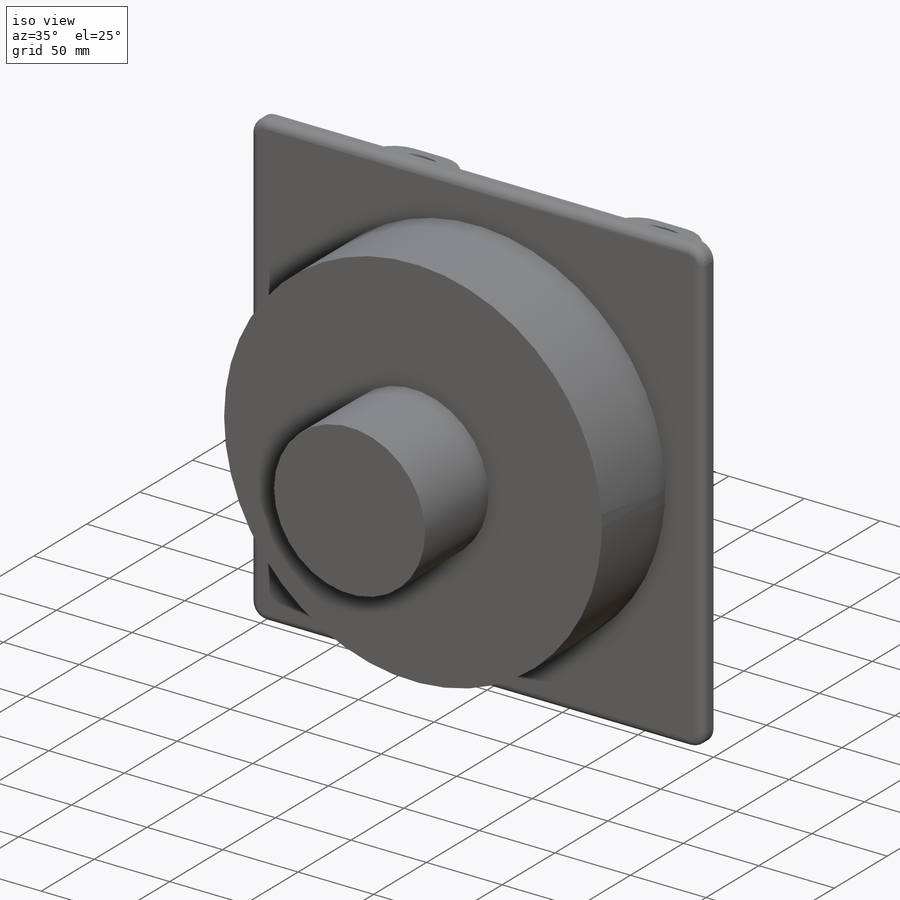
[diagram: iso view]
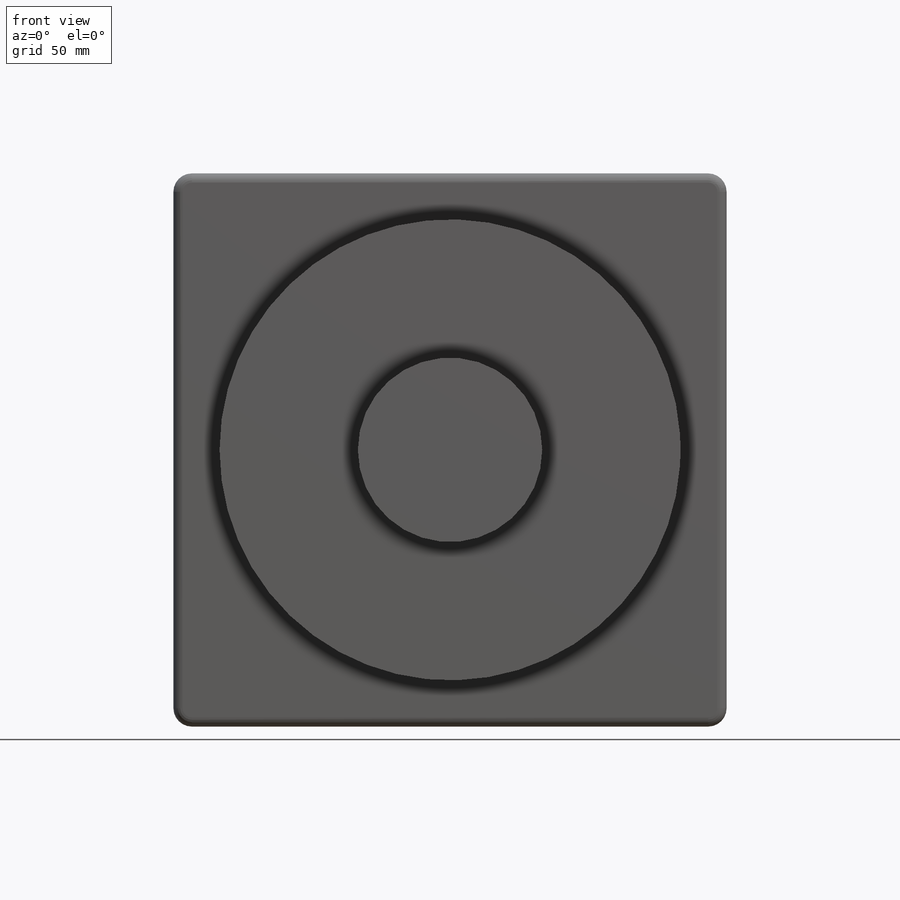
[diagram: front view]
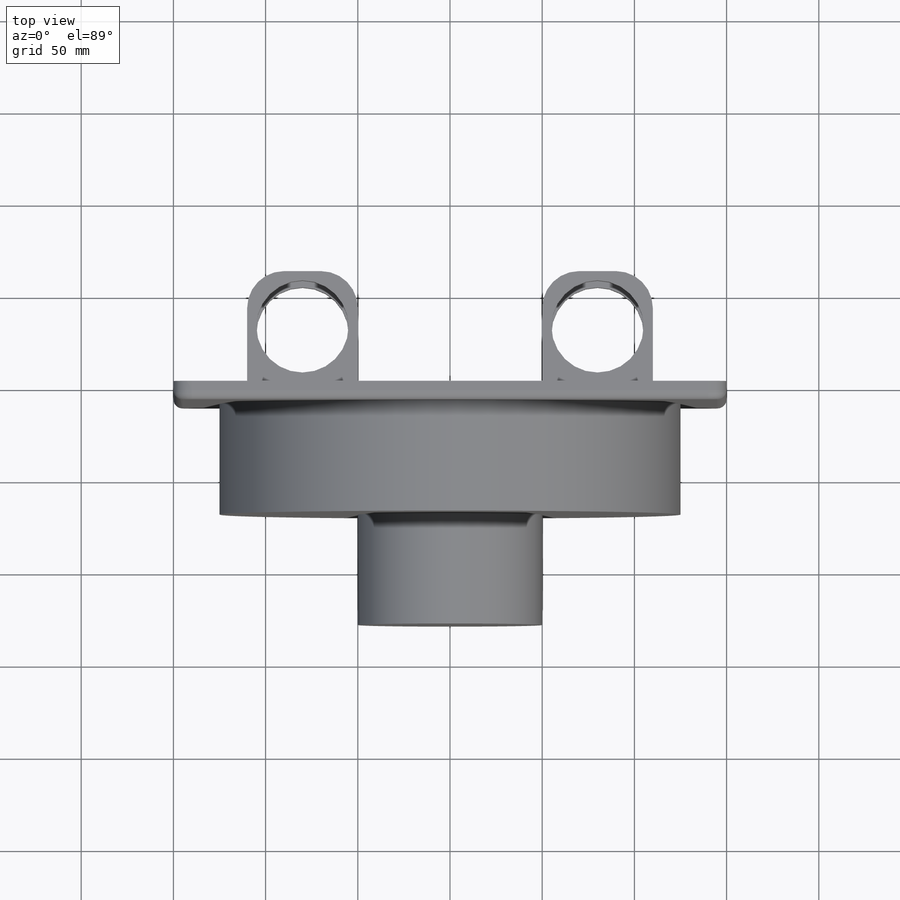
[diagram: top view]
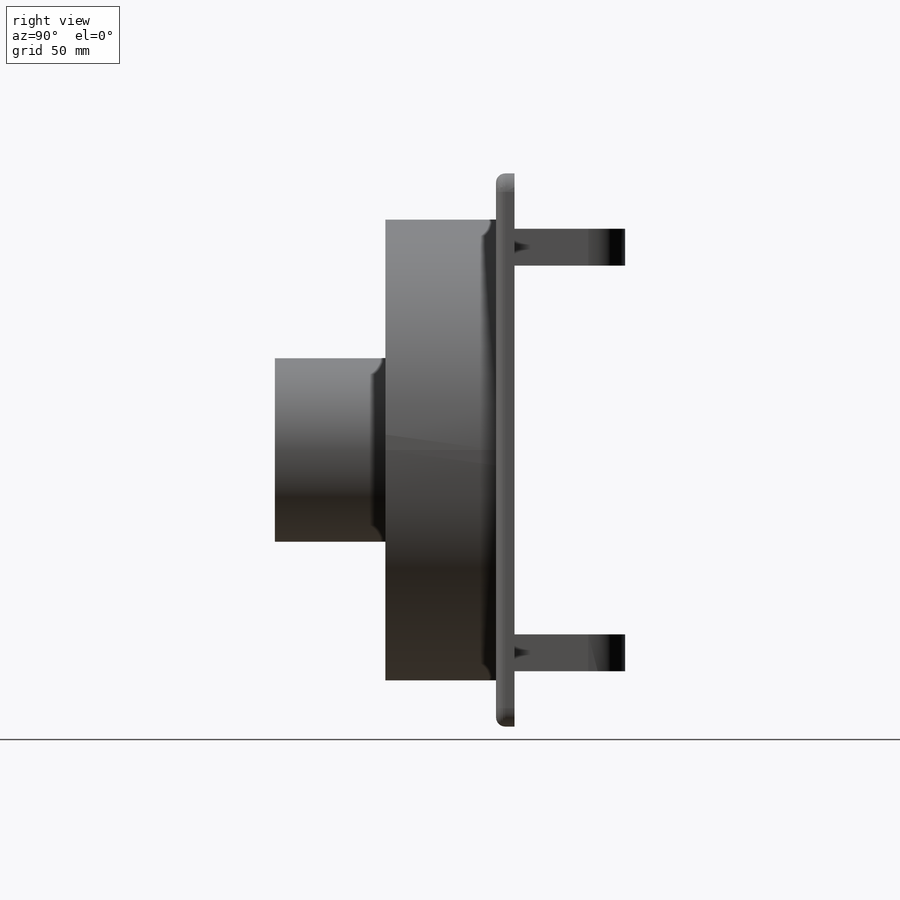
[diagram: right view]
SOLIDWORKS PART (.sldprt)
format: sldprt  version: not decoded by parser v0  size: 294,400 bytes
history: native  units: mm
features: sketch x5, extrude x4, fillet x2, material x1, cut_extrude x1 (+13 scaffold rows collapsed)
feature tree (26):
  scaffold x13  (default folders/planes/origin — collapsed)
  material  "Material <not specified>"
  sketch  "Sketch2"  dims[c1.D2=10.0mm c1.D1=300.0mm c2.D2=160.0mm]
  extrude  "Boss-Extrude1"  Depth=10mm
  fillet  "Fillet1"  Radius=5mm
  sketch  "Sketch3"  dims[c1.D1=60.0mm c1.D2=60.0mm c1.D3=20.0mm c1.D4=20.0mm c1.D5=80.0mm c1.D6=80.0mm c2.D3=40.0mm c2.D4=20.0mm c2.D7=20.0mm]
  extrude  "Boss-Extrude2"  Depth=60mm
  fillet  "Fillet2"  Radius=20mm
  sketch  "Sketch6"  dims[D1=50.0mm D2=30.0mm D3=30.0mm]
  cut_extrude  "Cut-Extrude1"  [1 undecoded]
  sketch  "Sketch7"  dims[D1=250.0mm]
  extrude  "Boss-Extrude3"  Depth=60mm
  sketch  "Sketch8"  dims[D1=100.0mm]
  extrude  "Boss-Extrude5"  Depth=59.9mm
decode coverage: 11 of 12 modeling features carry decoded parameters
note: 1 parameter value undecoded
note: suppression state not decoded; provenance and decode notes live in map.json
